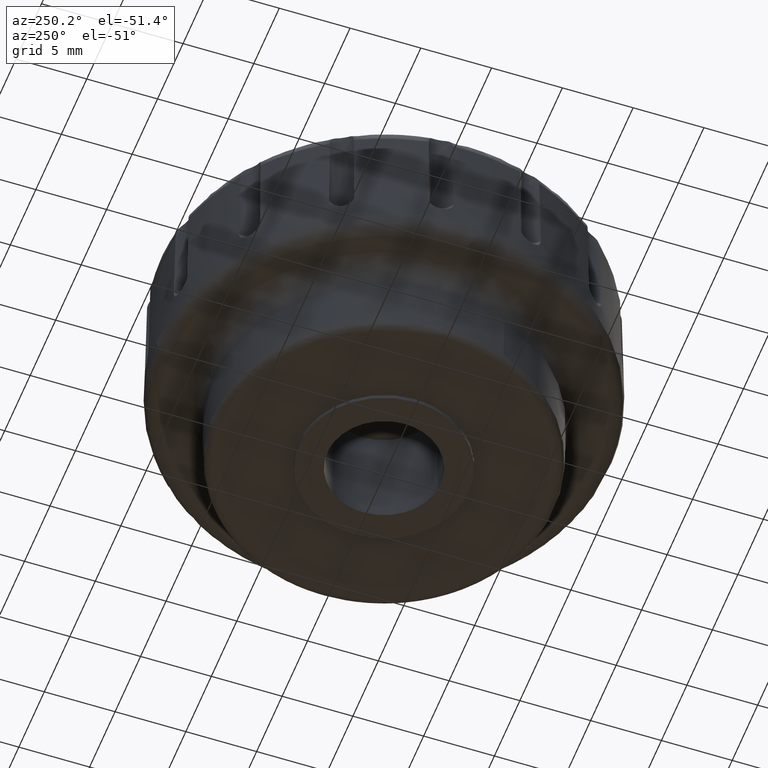
[diagram: clean part render]
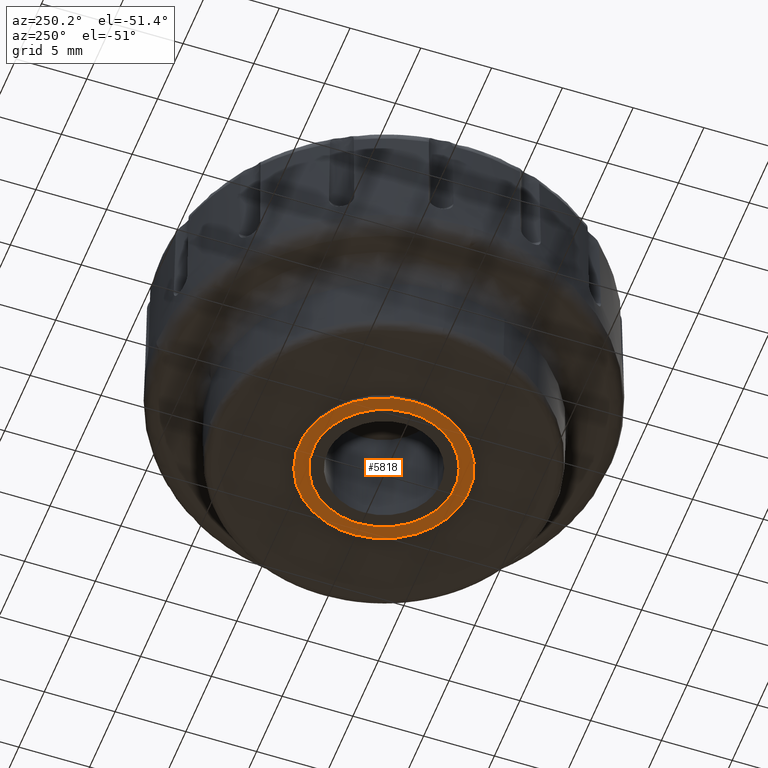
[diagram: same view with one face highlighted and labeled with its STEP entity id]
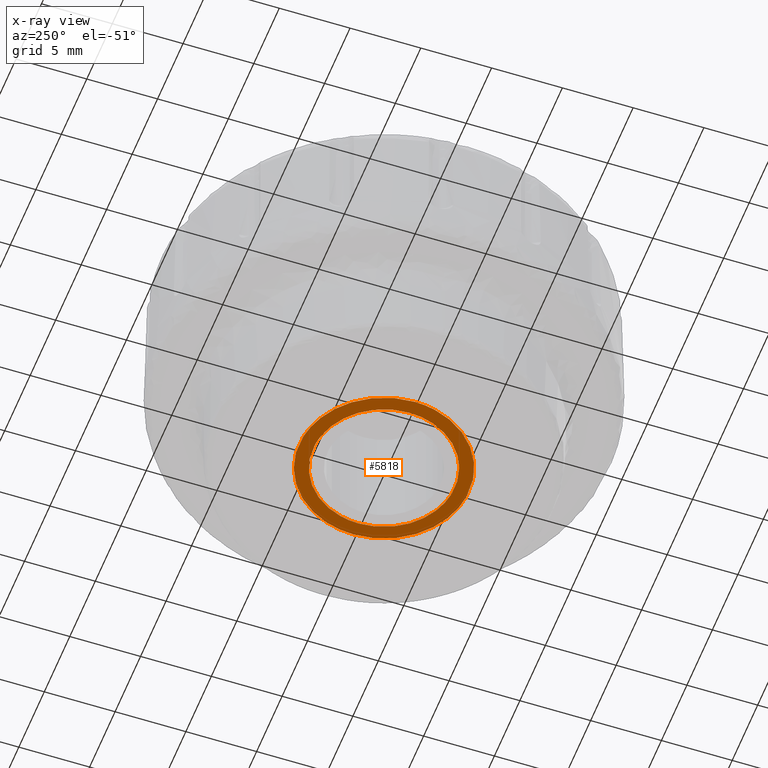
[diagram: x-ray of the same camera — body ghosted, the highlighted face saturated]
A machine part, auxiliary view. The second image highlights one B-rep face of the part: STEP entity #5818.
The next image is the same camera in x-ray: the body ghosted, the highlighted face saturated — about 0% of this face is hidden behind the body in this view.
In plain terms, the highlighted face is a freeform B-spline surface patch.
Its self-contained STEP definition (entity closure, byte-faithful):
#542=CARTESIAN_POINT('',(0.590170446463782,-4.965047718211800,0.000004401042420));
#543=VERTEX_POINT('',#542);
#549=CARTESIAN_POINT('',(-5.0,0.0,0.000004401042419));
#550=VERTEX_POINT('',#549);
#551=CARTESIAN_POINT('',(0.590170446463782,-4.965047718211800,0.000004401042420));
#552=CARTESIAN_POINT('',(0.296119863755711,-5.0,0.000004401042419));
#553=CARTESIAN_POINT('',(0.0,-5.0,0.000004401042419));
#554=CARTESIAN_POINT('',(-5.000000000000001,-5.000000000000001,0.000004401042419));
#555=CARTESIAN_POINT('',(-5.0,0.0,0.000004401042419));
#563=(BOUNDED_CURVE()B_SPLINE_CURVE(2,(#551,#552,#553,#554,#555),.UNSPECIFIED.,.F.,.U.)B_SPLINE_CURVE_WITH_KNOTS((3,2,3),(0.229562522995511,0.250000000000000,0.500000000000000),.UNSPECIFIED.)CURVE()GEOMETRIC_REPRESENTATION_ITEM()RATIONAL_B_SPLINE_CURVE((0.956026851170473,0.976056006302917,1.0,0.707106781186548,1.0))REPRESENTATION_ITEM(''));
#564=EDGE_CURVE('',#543,#550,#563,.T.);
#566=CARTESIAN_POINT('',(-0.305233602636167,4.990674548369059,0.000004401042419));
#567=VERTEX_POINT('',#566);
#568=CARTESIAN_POINT('',(-5.0,0.0,0.000004401042419));
#569=CARTESIAN_POINT('',(-4.999999999999999,4.703538922298357,0.000004401042419));
#570=CARTESIAN_POINT('',(-0.305233602636167,4.990674548369059,0.000004401042419));
#578=(BOUNDED_CURVE()B_SPLINE_CURVE(2,(#568,#569,#570),.UNSPECIFIED.,.F.,.U.)B_SPLINE_CURVE_WITH_KNOTS((3,3),(0.500000000000000,0.739333276692482),.UNSPECIFIED.)CURVE()GEOMETRIC_REPRESENTATION_ITEM()RATIONAL_B_SPLINE_CURVE((1.0,0.719603624881474,0.976072715601436))REPRESENTATION_ITEM(''));
#579=EDGE_CURVE('',#550,#567,#578,.T.);
#653=CARTESIAN_POINT('',(5.0,0.0,0.000004401042419));
#654=VERTEX_POINT('',#653);
#655=CARTESIAN_POINT('',(-0.305233602636167,4.990674548369059,0.000004401042419));
#656=CARTESIAN_POINT('',(-0.152759256223720,5.000000000000001,0.000004401042419));
#657=CARTESIAN_POINT('',(0.0,5.0,0.000004401042419));
#658=CARTESIAN_POINT('',(5.000000000000001,5.000000000000001,0.000004401042419));
#659=CARTESIAN_POINT('',(5.0,0.0,0.000004401042419));
#667=(BOUNDED_CURVE()B_SPLINE_CURVE(2,(#655,#656,#657,#658,#659),.UNSPECIFIED.,.F.,.U.)B_SPLINE_CURVE_WITH_KNOTS((3,2,3),(0.739333276692482,0.750000000000000,1.0),.UNSPECIFIED.)CURVE()GEOMETRIC_REPRESENTATION_ITEM()RATIONAL_B_SPLINE_CURVE((0.976072715601436,0.987503156305074,1.0,0.707106781186548,1.0))REPRESENTATION_ITEM(''));
#668=EDGE_CURVE('',#567,#654,#667,.T.);
#670=CARTESIAN_POINT('',(5.0,0.0,0.000004401042419));
#671=CARTESIAN_POINT('',(4.999999999999999,-4.440873939084681,0.000004401042419));
#672=CARTESIAN_POINT('',(0.590170446463782,-4.965047718211800,0.000004401042420));
#680=(BOUNDED_CURVE()B_SPLINE_CURVE(2,(#670,#671,#672),.UNSPECIFIED.,.F.,.U.)B_SPLINE_CURVE_WITH_KNOTS((3,3),(0.0,0.229562522995511),.UNSPECIFIED.)CURVE()GEOMETRIC_REPRESENTATION_ITEM()RATIONAL_B_SPLINE_CURVE((1.0,0.731050774883630,0.956026851170473))REPRESENTATION_ITEM(''));
#681=EDGE_CURVE('',#654,#543,#680,.T.);
#944=CARTESIAN_POINT('',(0.366286735152166,-5.988806990672693,0.000004401042381));
#945=VERTEX_POINT('',#944);
#951=CARTESIAN_POINT('',(5.999997928657789,0.0,0.000004401042381));
#952=VERTEX_POINT('',#951);
#953=CARTESIAN_POINT('',(5.999997928657789,0.0,0.000004401042381));
#954=CARTESIAN_POINT('',(5.999997928657789,-5.644238584466971,0.000004401042381));
#955=CARTESIAN_POINT('',(0.366286735152166,-5.988806990672693,0.000004401042381));
#963=(BOUNDED_CURVE()B_SPLINE_CURVE(2,(#953,#954,#955),.UNSPECIFIED.,.F.,.U.)B_SPLINE_CURVE_WITH_KNOTS((3,3),(0.500000000000000,0.739333088309919),.UNSPECIFIED.)CURVE()GEOMETRIC_REPRESENTATION_ITEM()RATIONAL_B_SPLINE_CURVE((1.0,0.719603845585374,0.976072311860967))REPRESENTATION_ITEM(''));
#964=EDGE_CURVE('',#952,#945,#963,.T.);
#966=CARTESIAN_POINT('',(-0.708198088934428,5.958055942224496,0.000004401042381));
#967=VERTEX_POINT('',#966);
#968=CARTESIAN_POINT('',(-0.708198088934428,5.958055942224496,0.000004401042381));
#969=CARTESIAN_POINT('',(-0.355341020584812,5.999997928657789,0.000004401042381));
#970=CARTESIAN_POINT('',(0.0,5.999997928657789,0.000004401042381));
#971=CARTESIAN_POINT('',(5.999997928657789,5.999997928657789,0.000004401042381));
#972=CARTESIAN_POINT('',(5.999997928657789,0.0,0.000004401042381));
#980=(BOUNDED_CURVE()B_SPLINE_CURVE(2,(#968,#969,#970,#971,#972),.UNSPECIFIED.,.F.,.U.)B_SPLINE_CURVE_WITH_KNOTS((3,2,3),(0.229562674187910,0.250000000000000,0.500000000000000),.UNSPECIFIED.)CURVE()GEOMETRIC_REPRESENTATION_ITEM()RATIONAL_B_SPLINE_CURVE((0.956027147514116,0.976056183435831,1.0,0.707106781186548,1.0))REPRESENTATION_ITEM(''));
#981=EDGE_CURVE('',#967,#952,#980,.T.);
#1025=CARTESIAN_POINT('',(-5.999997928657789,0.0,0.000004401042381));
#1026=VERTEX_POINT('',#1025);
#1027=CARTESIAN_POINT('',(-5.999997928657789,0.0,0.000004401042381));
#1028=CARTESIAN_POINT('',(-5.999997928657790,5.329051688180685,0.000004401042381));
#1029=CARTESIAN_POINT('',(-0.708198088934428,5.958055942224496,0.000004401042381));
#1037=(BOUNDED_CURVE()B_SPLINE_CURVE(2,(#1027,#1028,#1029),.UNSPECIFIED.,.F.,.U.)B_SPLINE_CURVE_WITH_KNOTS((3,3),(0.0,0.229562674187910),.UNSPECIFIED.)CURVE()GEOMETRIC_REPRESENTATION_ITEM()RATIONAL_B_SPLINE_CURVE((1.0,0.731050597750717,0.956027147514116))REPRESENTATION_ITEM(''));
#1038=EDGE_CURVE('',#1026,#967,#1037,.T.);
#1040=CARTESIAN_POINT('',(0.366286735152166,-5.988806990672693,0.000004401042381));
#1041=CARTESIAN_POINT('',(0.183314322569764,-5.999997928657789,0.000004401042381));
#1042=CARTESIAN_POINT('',(0.0,-5.999997928657789,0.000004401042381));
#1043=CARTESIAN_POINT('',(-5.999997928657789,-5.999997928657789,0.000004401042381));
#1044=CARTESIAN_POINT('',(-5.999997928657789,0.0,0.000004401042381));
#1052=(BOUNDED_CURVE()B_SPLINE_CURVE(2,(#1040,#1041,#1042,#1043,#1044),.UNSPECIFIED.,.F.,.U.)B_SPLINE_CURVE_WITH_KNOTS((3,2,3),(0.739333088309919,0.750000000000000,1.0),.UNSPECIFIED.)CURVE()GEOMETRIC_REPRESENTATION_ITEM()RATIONAL_B_SPLINE_CURVE((0.976072311860967,0.987502935601173,1.0,0.707106781186548,1.0))REPRESENTATION_ITEM(''));
#1053=EDGE_CURVE('',#945,#1026,#1052,.T.);
#5801=CARTESIAN_POINT('',(-6.599397923767132,-6.599251889150632,0.000004401042381));
#5802=CARTESIAN_POINT('',(6.599398031055455,-6.599251889150632,0.000004401042381));
#5803=CARTESIAN_POINT('',(-6.599397923767132,6.599288581757288,0.000004401042381));
#5804=CARTESIAN_POINT('',(6.599398031055455,6.599288581757288,0.000004401042381));
#5805=B_SPLINE_SURFACE_WITH_KNOTS('',1,1,((#5801,#5803),(#5802,#5804)),.UNSPECIFIED.,.F.,.F.,.U.,(2,2),(2,2),(0.0,13.198795954822589),(0.0,13.198540470907920),.UNSPECIFIED.);
#5806=ORIENTED_EDGE('',*,*,#1038,.T.);
#5807=ORIENTED_EDGE('',*,*,#981,.T.);
#5808=ORIENTED_EDGE('',*,*,#964,.T.);
#5809=ORIENTED_EDGE('',*,*,#1053,.T.);
#5810=EDGE_LOOP('',(#5806,#5807,#5808,#5809));
#5811=FACE_OUTER_BOUND('',#5810,.T.);
#5812=ORIENTED_EDGE('',*,*,#579,.F.);
#5813=ORIENTED_EDGE('',*,*,#564,.F.);
#5814=ORIENTED_EDGE('',*,*,#681,.F.);
#5815=ORIENTED_EDGE('',*,*,#668,.F.);
#5816=EDGE_LOOP('',(#5812,#5813,#5814,#5815));
#5817=FACE_BOUND('',#5816,.T.);
#5818=ADVANCED_FACE('',(#5811,#5817),#5805,.F.);